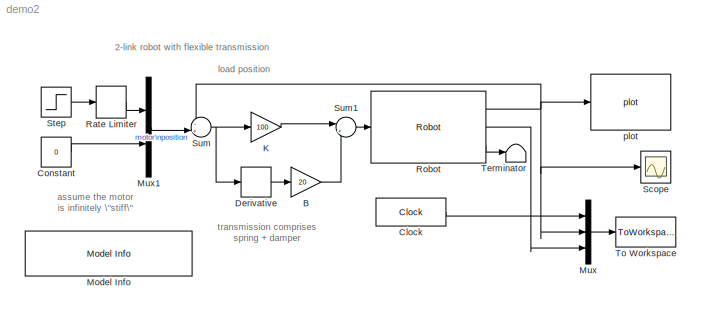
MODEL demo2
KIND model
BLOCK [Gain] B
  Gain = 20
BLOCK [Clock] Clock
  Decimation = 10
  DisplayTime = on
BLOCK [Constant] Constant
  Value = 0
BLOCK [Derivative] Derivative
BLOCK [Gain] K
  Gain = 100
BLOCK [Reference] Model Info  REF=simulink/Model-Wide\nUtilities/Model Info
  BlockCM = none
  DisplayStringWithTags = 2-link demo\n%<Creator>\n%<ModifiedDate>
  Frame = on
  FunctionWithSeparateData = off
  HorizontalTextAlignment = Left
  InitialBlockCM = none
  LeftAlignmentValue = 0.02
  MaskDisplayString = 2-link demo\\npic\\nWed Apr 23 21:52:46 2008
  Ports = []
  RTWMemSecDataConstants = Inherit from model
  RTWMemSecDataInternal = Inherit from model
  RTWMemSecDataParameters = Inherit from model
  RTWMemSecFuncExecute = Inherit from model
  RTWMemSecFuncInitTerm = Inherit from model
  ShowPortLabels = FromPortIcon
  SourceBlock = simulink/Model-Wide\nUtilities/Model Info
  SourceBlockDiagram = demo2
  SourceType = CMBlock
  SystemSampleTime = -1
  TagMaxNumber = 20
BLOCK [Mux] Mux
  DisplayOption = bar
  Inputs = 3
  Ports = [3, 1]
BLOCK [Mux] Mux1
  DisplayOption = bar
  Inputs = 2
  Ports = [2, 1]
BLOCK [RateLimiter] Rate Limiter
  FallingSlewLimit = -50
  RisingSlewLimit = 50
BLOCK [Reference] Robot  REF=roblocks/Robot  (lib defined in mdl_2a292b13c81b, mdl_69400f8cfe22, +12 more)
  FunctionWithSeparateData = off
  Ports = [1, 3]
  RTWMemSecDataConstants = Inherit from model
  RTWMemSecDataInternal = Inherit from model
  RTWMemSecDataParameters = Inherit from model
  RTWMemSecFuncExecute = Inherit from model
  RTWMemSecFuncInitTerm = Inherit from model
  ShowPortLabels = FromPortIcon
  SourceBlock = roblocks/Robot
  SystemSampleTime = -1
  q0 = [0 0]
  robot = tl
BLOCK [Scope] Scope
  DataFormat = StructureWithTime
  Floating = off
  NumInputPorts = 1
  Ports = [1]
  SampleTime = 0
  YMax = 1.5
  YMin = -0.5
BLOCK [Step] Step
  SampleTime = 0
BLOCK [Sum] Sum
  IconShape = round
  Inputs = -+|
  Ports = [2, 1]
BLOCK [Sum] Sum1
  IconShape = round
  Inputs = |++
  Ports = [2, 1]
BLOCK [Terminator] Terminator
BLOCK [ToWorkspace] To Workspace
  MaxDataPoints = inf
  SampleTime = -1
  SaveFormat = Array
  VariableName = simout
BLOCK [Reference] plot  REF=roblocks/plot  (lib defined in mdl_2a292b13c81b, mdl_69400f8cfe22, +12 more)
  FunctionWithSeparateData = off
  Ports = [1]
  RTWMemSecDataConstants = Inherit from model
  RTWMemSecDataInternal = Inherit from model
  RTWMemSecDataParameters = Inherit from model
  RTWMemSecFuncExecute = Inherit from model
  RTWMemSecFuncInitTerm = Inherit from model
  ShowPortLabels = FromPortIcon
  SourceBlock = roblocks/plot
  SystemSampleTime = -1
  robot = tl
ANNOTATION (root): 2-link robot with flexible transmission
ANNOTATION (root): assume the motor\nis infinitely \"stiff\"
ANNOTATION (root): load position
ANNOTATION (root): transmission comprises\nspring + damper
LINE B:1 -> Sum1:2
LINE Clock:1 -> Mux:1
LINE Constant:1 -> Mux1:2
LINE Derivative:1 -> B:1
LINE K:1 -> Sum1:1
LINE Mux1:1 -> Sum:2
LINE Mux:1 -> To Workspace:1
LINE Rate Limiter:1 -> Mux1:1
NET Robot:1 -> Mux:2, Scope:1, Sum:1, plot:1
LINE Robot:2 -> Mux:3
LINE Robot:3 -> Terminator:1
LINE Step:1 -> Rate Limiter:1
LINE Sum1:1 -> Robot:1
NET Sum:1 -> Derivative:1, K:1
note: NET lines group one-source signal fan-out (src -> all destinations, sorted); 1:1 wires keep LINE
